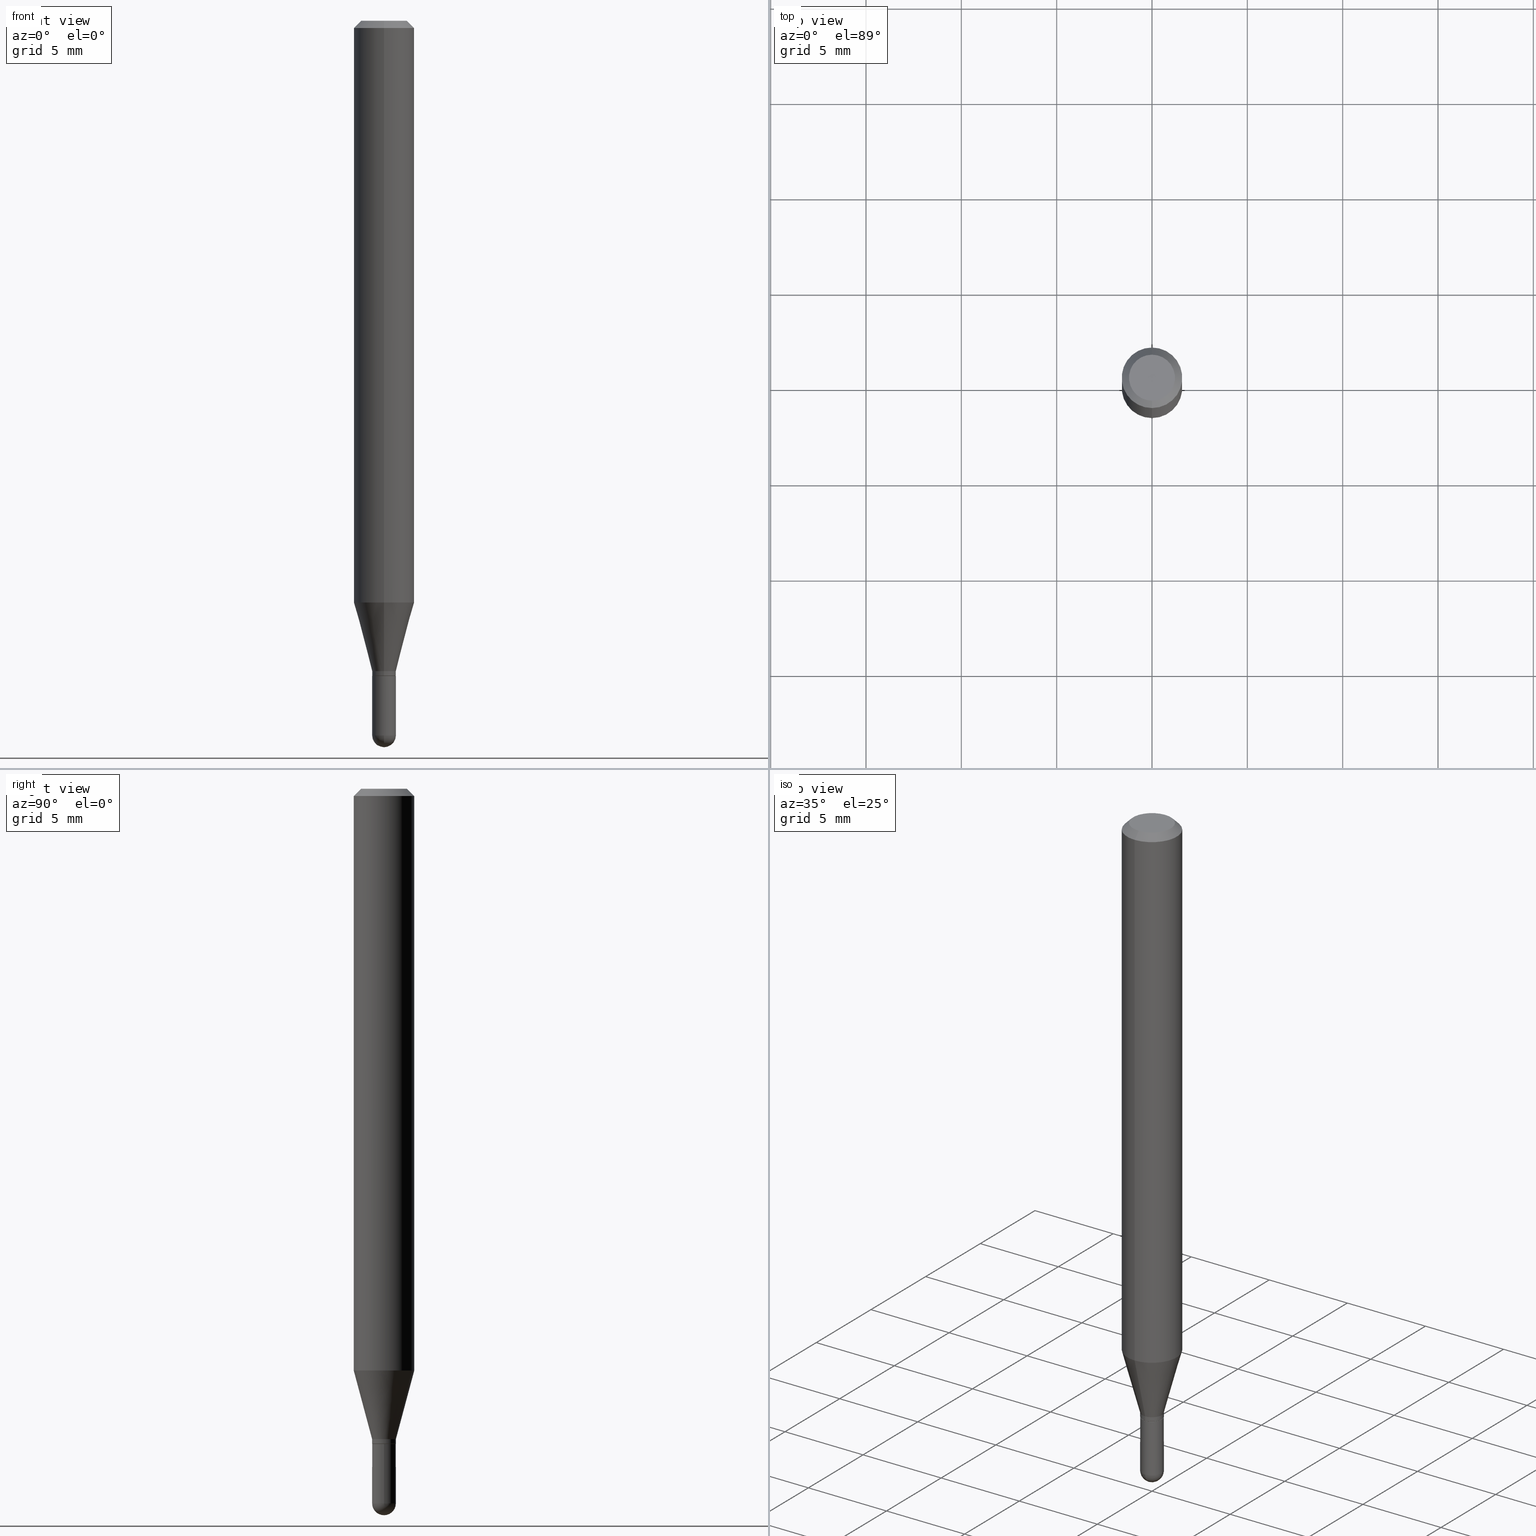
[diagram: canonical four-view strip — front | top / right | iso, engineering-drawing reading convention]
A machine part, canonical four-view strip (front | top / right | iso — engineering-drawing reading convention). The complete STEP part file that produces these views, byte-faithful:
ISO-10303-21;
HEADER;
FILE_DESCRIPTION (( 'STEP AP203' ),
    '1' );
FILE_NAME ('02580.STEP',
    '2024-03-07T20:33:36',
    ( '' ),
    ( '' ),
    'SwSTEP 2.0',
    'SolidWorks 2023',
    '' );
FILE_SCHEMA (( 'CONFIG_CONTROL_DESIGN' ));
ENDSEC;

DATA;
#1 = COORDINATED_UNIVERSAL_TIME_OFFSET ( 5, 0, .BEHIND. ) ;
#2 = ORIENTED_EDGE ( 'NONE', *, *, #184, .F. ) ;
#3 = EDGE_LOOP ( 'NONE', ( #83, #474, #207, #306, #398 ) ) ;
#4 = DIRECTION ( 'NONE',  ( 2.438088387897960049E-29, -3.491481338843145188E-15, -1.000000000000000000 ) ) ;
#5 = DIRECTION ( 'NONE',  ( 1.000000000000000000, -6.982962677686266711E-15, 4.883557194083112901E-29 ) ) ;
#6 = AXIS2_PLACEMENT_3D ( 'NONE', #185, #375, #181 ) ;
#7 = CONICAL_SURFACE ( 'NONE', #378, 0.02400000000000000050, 0.7853981633974739252 ) ;
#8 = AXIS2_PLACEMENT_3D ( 'NONE', #350, #235, #193 ) ;
#9 = DIRECTION ( 'NONE',  ( 1.000000000000000000, -6.982962677686272233E-15, 0.000000000000000000 ) ) ;
#10 = SPHERICAL_SURFACE ( 'NONE', #171, 0.02450000000000012584 ) ;
#11 = SPHERICAL_SURFACE ( 'NONE', #481, 0.02450000000000012584 ) ;
#12 = PERSON_AND_ORGANIZATION ( #260, #353 ) ;
#13 = CARTESIAN_POINT ( 'NONE',  ( 3.308719294768489645E-29, -4.723974251454776406E-15, -1.352999999999999980 ) ) ;
#14 = AXIS2_PLACEMENT_3D ( 'NONE', #475, #4, #482 ) ;
#15 = LOCAL_TIME ( 15, 33, 36.00000000000000000, #218 ) ;
#16 = FACE_OUTER_BOUND ( 'NONE', #284, .T. ) ;
#17 = CARTESIAN_POINT ( 'NONE',  ( 3.284268798558277710E-29, -4.689053435096215109E-15, -1.343000000000000416 ) ) ;
#18 = CC_DESIGN_PERSON_AND_ORGANIZATION_ASSIGNMENT ( #403, #43, ( #309 ) ) ;
#19 = PERSON_AND_ORGANIZATION_ROLE ( 'classification_officer' ) ;
#20 = DIRECTION ( 'NONE',  ( -6.982962677686266711E-15, -1.000000000000000000, 3.491476869021752779E-15 ) ) ;
#21 = DIRECTION ( 'NONE',  ( -6.982962677686265922E-15, -1.000000000000000000, 0.000000000000000000 ) ) ;
#22 = APPROVAL_STATUS ( 'not_yet_approved' ) ;
#23 = LINE ( 'NONE', #183, #57 ) ;
#24 = VERTEX_POINT ( 'NONE', #389 ) ;
#25 = ADVANCED_FACE ( 'NONE', ( #194 ), #273, .T. ) ;
#26 = AXIS2_PLACEMENT_3D ( 'NONE', #341, #294, #456 ) ;
#27 = CC_DESIGN_DATE_AND_TIME_ASSIGNMENT ( #140, #382, ( #106 ) ) ;
#28 = DIRECTION ( 'NONE',  ( -6.982962677686265922E-15, -1.000000000000000000, 3.491476869021752385E-15 ) ) ;
#29 = PRODUCT_DEFINITION_FORMATION_WITH_SPECIFIED_SOURCE ( 'ANY', '', #371, .NOT_KNOWN. ) ;
#30 = VERTEX_POINT ( 'NONE', #322 ) ;
#31 = ORIENTED_EDGE ( 'NONE', *, *, #408, .T. ) ;
#32 = AXIS2_PLACEMENT_3D ( 'NONE', #330, #252, #124 ) ;
#33 = LOCAL_TIME ( 15, 33, 36.00000000000000000, #1 ) ;
#34 = VERTEX_POINT ( 'NONE', #311 ) ;
#35 = LENGTH_MEASURE_WITH_UNIT ( LENGTH_MEASURE( 0.02539999999999999897 ), #500 );
#36 = DIRECTION ( 'NONE',  ( 2.445471927444732928E-29, -3.491476869021752385E-15, -1.000000000000000000 ) ) ;
#37 = ORIENTED_EDGE ( 'NONE', *, *, #105, .T. ) ;
#38 = EDGE_LOOP ( 'NONE', ( #230, #281, #191, #233 ) ) ;
#39 = EDGE_LOOP ( 'NONE', ( #441, #163, #503, #202 ) ) ;
#40 = ADVANCED_FACE ( 'NONE', ( #237 ), #48, .T. ) ;
#41 = VECTOR ( 'NONE', #47, 39.37007874015748854 ) ;
#42 = EDGE_LOOP ( 'NONE', ( #109, #279, #435, #241 ) ) ;
#43 = PERSON_AND_ORGANIZATION_ROLE ( 'creator' ) ;
#44 = DIRECTION ( 'NONE',  ( -2.445468806185136877E-29, 3.491481338843145188E-15, 1.000000000000000000 ) ) ;
#45 = FACE_OUTER_BOUND ( 'NONE', #405, .T. ) ;
#46 = ORIENTED_EDGE ( 'NONE', *, *, #431, .T. ) ;
#47 = DIRECTION ( 'NONE',  ( -1.807323732225332900E-15, -0.2588190451025185190, 0.9659258262890689783 ) ) ;
#48 = CONICAL_SURFACE ( 'NONE', #344, 0.06250000000000000000, 0.7853981633974483900 ) ;
#49 = DIRECTION ( 'NONE',  ( 1.000000000000000000, 0.000000000000000000, 0.000000000000000000 ) ) ;
#50 = CARTESIAN_POINT ( 'NONE',  ( 3.090860900556744730E-16, 0.02449999999999523739, -1.343000000000000416 ) ) ;
#51 = AXIS2_PLACEMENT_3D ( 'NONE', #280, #82, #368 ) ;
#52 = ADVANCED_FACE ( 'NONE', ( #243 ), #283, .T. ) ;
#53 = DIRECTION ( 'NONE',  ( -4.851104656540964275E-15, -0.7071067811865500152, -0.7071067811865450192 ) ) ;
#54 = PERSON_AND_ORGANIZATION ( #260, #353 ) ;
#55 = DIRECTION ( 'NONE',  ( -2.445471927444732928E-29, 3.491476869021752385E-15, 1.000000000000000000 ) ) ;
#56 = CARTESIAN_POINT ( 'NONE',  ( 3.308723517832723557E-29, -4.723968203786431817E-15, -1.352999999999999980 ) ) ;
#57 = VECTOR ( 'NONE', #135, 39.37007874015748143 ) ;
#58 = CIRCLE ( 'NONE', #236, 0.02449999999999992462 ) ;
#59 = DIRECTION ( 'NONE',  ( -2.445471927444732928E-29, 3.491476869021752385E-15, 1.000000000000000000 ) ) ;
#60 = ORIENTED_EDGE ( 'NONE', *, *, #195, .F. ) ;
#61 = APPROVAL_STATUS ( 'not_yet_approved' ) ;
#62 = DIRECTION ( 'NONE',  ( -2.445471927444732928E-29, 3.491476869021752385E-15, 1.000000000000000000 ) ) ;
#63 = ADVANCED_FACE ( 'NONE', ( #85 ), #508, .T. ) ;
#64 = ADVANCED_FACE ( 'NONE', ( #45 ), #160, .T. ) ;
#65 = PLANE ( 'NONE',  #68 ) ;
#66 = VECTOR ( 'NONE', #162, 39.37007874015748143 ) ;
#67 = CARTESIAN_POINT ( 'NONE',  ( 3.606194066117680480E-29, -5.154681100120972780E-15, -1.475500000000000256 ) ) ;
#68 = AXIS2_PLACEMENT_3D ( 'NONE', #351, #386, #28 ) ;
#69 = DIRECTION ( 'NONE',  ( -2.445468806185136597E-29, 3.491481338843145583E-15, 1.000000000000000000 ) ) ;
#70 = EDGE_LOOP ( 'NONE', ( #2, #249, #459, #288 ) ) ;
#71 = ORIENTED_EDGE ( 'NONE', *, *, #165, .F. ) ;
#72 = ADVANCED_FACE ( 'NONE', ( #298 ), #11, .T. ) ;
#73 = CIRCLE ( 'NONE', #151, 0.02450000000000000441 ) ;
#74 = CONICAL_SURFACE ( 'NONE', #462, 0.02449999999999992462, 0.2617993877991506291 ) ;
#75 = CC_DESIGN_APPROVAL ( #352, ( #29 ) ) ;
#76 = VERTEX_POINT ( 'NONE', #169 ) ;
#77 = CARTESIAN_POINT ( 'NONE',  ( 3.668207891167179599E-31, -5.237215303532743381E-17, -0.01500000000000032904 ) ) ;
#78 = ADVANCED_FACE ( 'NONE', ( #101 ), #270, .T. ) ;
#79 = ORIENTED_EDGE ( 'NONE', *, *, #176, .F. ) ;
#80 = CC_DESIGN_PERSON_AND_ORGANIZATION_ASSIGNMENT ( #12, #173, ( #29 ) ) ;
#81 = COORDINATED_UNIVERSAL_TIME_OFFSET ( 5, 0, .BEHIND. ) ;
#82 = DIRECTION ( 'NONE',  ( -2.445468806185136597E-29, 3.491481338843145583E-15, 1.000000000000000000 ) ) ;
#83 = ORIENTED_EDGE ( 'NONE', *, *, #436, .T. ) ;
#84 = APPROVAL_DATE_TIME ( #442, #150 ) ;
#85 = FACE_OUTER_BOUND ( 'NONE', #497, .T. ) ;
#86 = AXIS2_PLACEMENT_3D ( 'NONE', #13, #174, #224 ) ;
#87 = ORIENTED_EDGE ( 'NONE', *, *, #317, .F. ) ;
#88 = PRODUCT_DEFINITION_SHAPE ( 'NONE', 'NONE',  #309 ) ;
#89 = CIRCLE ( 'NONE', #422, 0.02450000000000000441 ) ;
#90 = DATE_TIME_ROLE ( 'creation_date' ) ;
#91 = FACE_OUTER_BOUND ( 'NONE', #125, .T. ) ;
#92 = DIRECTION ( 'NONE',  ( -2.445471927444732928E-29, 3.491476869021752385E-15, 1.000000000000000000 ) ) ;
#93 = MECHANICAL_CONTEXT ( 'NONE', #499, 'mechanical' ) ;
#94 = PERSON_AND_ORGANIZATION_ROLE ( 'design_supplier' ) ;
#95 = DIRECTION ( 'NONE',  ( -6.982962677686265922E-15, -1.000000000000000000, 0.000000000000000000 ) ) ;
#96 = AXIS2_PLACEMENT_3D ( 'NONE', #460, #488, #95 ) ;
#97 = SECURITY_CLASSIFICATION_LEVEL ( 'unclassified' ) ;
#98 = CARTESIAN_POINT ( 'NONE',  ( -4.364351673553916201E-16, -0.06250000000000000000, 2.182173043138594994E-16 ) ) ;
#99 = ADVANCED_FACE ( 'NONE', ( #325 ), #7, .T. ) ;
#100 = LINE ( 'NONE', #219, #412 ) ;
#101 = FACE_OUTER_BOUND ( 'NONE', #70, .T. ) ;
#102 = DIRECTION ( 'NONE',  ( -2.445471927444732928E-29, 3.491476869021752385E-15, 1.000000000000000000 ) ) ;
#103 = PERSON_AND_ORGANIZATION ( #260, #353 ) ;
#104 = CONICAL_SURFACE ( 'NONE', #461, 0.02449999999999992462, 0.2617993877991506291 ) ;
#105 = EDGE_CURVE ( 'NONE', #506, #122, #430, .T. ) ;
#106 = SECURITY_CLASSIFICATION ( '', '', #97 ) ;
#107 = DIRECTION ( 'NONE',  ( 1.000000000000000000, -6.982962677686272233E-15, 0.000000000000000000 ) ) ;
#108 = ORIENTED_EDGE ( 'NONE', *, *, #359, .F. ) ;
#109 = ORIENTED_EDGE ( 'NONE', *, *, #167, .F. ) ;
#110 = CIRCLE ( 'NONE', #509, 0.06250000000000000000 ) ;
#111 = APPLICATION_PROTOCOL_DEFINITION ( 'international standard', 'config_control_design', 1994, #499 ) ;
#112 = VERTEX_POINT ( 'NONE', #175 ) ;
#113 = VERTEX_POINT ( 'NONE', #287 ) ;
#114 = VERTEX_POINT ( 'NONE', #329 ) ;
#115 = VECTOR ( 'NONE', #44, 39.37007874015748143 ) ;
#116 = DIRECTION ( 'NONE',  ( -2.445471927444732928E-29, 3.491476869021752385E-15, 1.000000000000000000 ) ) ;
#117 = APPROVAL_PERSON_ORGANIZATION ( #212, #150, #172 ) ;
#118 = CC_DESIGN_DATE_AND_TIME_ASSIGNMENT ( #126, #90, ( #309 ) ) ;
#119 = EDGE_LOOP ( 'NONE', ( #469, #161, #244, #437 ) ) ;
#120 = CARTESIAN_POINT ( 'NONE',  ( 0.000000000000000000, 0.000000000000000000, 0.000000000000000000 ) ) ;
#121 = DIRECTION ( 'NONE',  ( -6.982962677686265133E-15, -1.000000000000000000, 0.000000000000000000 ) ) ;
#122 = VERTEX_POINT ( 'NONE', #50 ) ;
#123 = AXIS2_PLACEMENT_3D ( 'NONE', #197, #444, #356 ) ;
#124 = DIRECTION ( 'NONE',  ( -6.982962677686265922E-15, -1.000000000000000000, 3.483106191921935554E-15 ) ) ;
#125 = EDGE_LOOP ( 'NONE', ( #464, #323 ) ) ;
#126 = DATE_AND_TIME ( #478, #33 ) ;
#127 = LINE ( 'NONE', #201, #66 ) ;
#128 = DIRECTION ( 'NONE',  ( -2.445471927444732928E-29, 3.491476869021752385E-15, 1.000000000000000000 ) ) ;
#129 = VECTOR ( 'NONE', #53, 39.37007874015748143 ) ;
#130 = ORIENTED_EDGE ( 'NONE', *, *, #157, .F. ) ;
#131 = CC_DESIGN_PERSON_AND_ORGANIZATION_ASSIGNMENT ( #454, #94, ( #29 ) ) ;
#132 = CARTESIAN_POINT ( 'NONE',  ( 3.668207891167179599E-31, -5.237215303532743381E-17, -0.01500000000000032904 ) ) ;
#133 = DIRECTION ( 'NONE',  ( -2.445471927444732928E-29, 3.491476869021752385E-15, 1.000000000000000000 ) ) ;
#134 = APPLICATION_CONTEXT ( 'configuration controlled 3d designs of mechanical parts and assemblies' ) ;
#135 = DIRECTION ( 'NONE',  ( 4.937700262164548042E-15, 0.7071067811865451302, -0.7071067811865499042 ) ) ;
#136 = CIRCLE ( 'NONE', #448, 0.02400000000000000050 ) ;
#137 = APPROVAL ( #22, 'UNSPECIFIED' ) ;
#138 = DATE_AND_TIME ( #490, #15 ) ;
#139 = CARTESIAN_POINT ( 'NONE',  ( 1.740829702612568216E-16, 0.02449999999999523392, -1.343000000000000416 ) ) ;
#140 = DATE_AND_TIME ( #414, #373 ) ;
#141 = LINE ( 'NONE', #139, #401 ) ;
#142 = CARTESIAN_POINT ( 'NONE',  ( -4.287811248607203282E-16, -0.06250000000000005551, -0.01500000000000011047 ) ) ;
#143 = DIRECTION ( 'NONE',  ( -1.000000000000000000, 6.982962677686265922E-15, -4.883557194083112340E-29 ) ) ;
#144 = CIRCLE ( 'NONE', #487, 0.06250000000000000000 ) ;
#145 = CC_DESIGN_APPROVAL ( #137, ( #106 ) ) ;
#146 = EDGE_CURVE ( 'NONE', #166, #122, #335, .T. ) ;
#147 = EDGE_LOOP ( 'NONE', ( #354, #108, #304, #480 ) ) ;
#148 = CARTESIAN_POINT ( 'NONE',  ( -1.710825856032801340E-16, -0.02450000000000461531, -1.343000000000000416 ) ) ;
#149 = FACE_OUTER_BOUND ( 'NONE', #320, .T. ) ;
#150 = APPROVAL ( #358, 'UNSPECIFIED' ) ;
#151 = AXIS2_PLACEMENT_3D ( 'NONE', #178, #339, #424 ) ;
#152 = FACE_OUTER_BOUND ( 'NONE', #42, .T. ) ;
#153 = ORIENTED_EDGE ( 'NONE', *, *, #395, .T. ) ;
#154 = DIRECTION ( 'NONE',  ( 6.982962677686265922E-15, 1.000000000000000000, -3.483106191921935554E-15 ) ) ;
#155 = VERTEX_POINT ( 'NONE', #291 ) ;
#156 = EDGE_CURVE ( 'NONE', #205, #314, #144, .T. ) ;
#157 = EDGE_CURVE ( 'NONE', #472, #76, #136, .T. ) ;
#158 = EDGE_LOOP ( 'NONE', ( #153, #365, #367, #71 ) ) ;
#159 = DIRECTION ( 'NONE',  ( 6.982962677686265922E-15, 1.000000000000000000, -3.491476869021752385E-15 ) ) ;
#160 = CYLINDRICAL_SURFACE ( 'NONE', #349, 0.06250000000000000000 ) ;
#161 = ORIENTED_EDGE ( 'NONE', *, *, #195, .T. ) ;
#162 = DIRECTION ( 'NONE',  ( -2.445468806185136877E-29, 3.491481338843145188E-15, 1.000000000000000000 ) ) ;
#163 = ORIENTED_EDGE ( 'NONE', *, *, #415, .T. ) ;
#164 = ORIENTED_EDGE ( 'NONE', *, *, #395, .F. ) ;
#165 = EDGE_CURVE ( 'NONE', #76, #446, #347, .T. ) ;
#166 = VERTEX_POINT ( 'NONE', #465 ) ;
#167 = EDGE_CURVE ( 'NONE', #314, #238, #269, .T. ) ;
#168 = CYLINDRICAL_SURFACE ( 'NONE', #51, 0.02450000000000000441 ) ;
#169 = CARTESIAN_POINT ( 'NONE',  ( -1.675911042644372995E-16, -0.02400000000000472589, -1.352999999999999980 ) ) ;
#170 = AXIS2_PLACEMENT_3D ( 'NONE', #247, #397, #404 ) ;
#171 = AXIS2_PLACEMENT_3D ( 'NONE', #259, #334, #416 ) ;
#172 = APPROVAL_ROLE ( '' ) ;
#173 = PERSON_AND_ORGANIZATION_ROLE ( 'creator' ) ;
#174 = DIRECTION ( 'NONE',  ( -2.445468806185136597E-29, 3.491481338843145583E-15, 1.000000000000000000 ) ) ;
#175 = CARTESIAN_POINT ( 'NONE',  ( 3.665060473164972086E-29, -5.241722585251585722E-15, -1.500000000000000444 ) ) ;
#176 = EDGE_CURVE ( 'NONE', #112, #512, #391, .T. ) ;
#177 = AXIS2_PLACEMENT_3D ( 'NONE', #77, #240, #154 ) ;
#178 = CARTESIAN_POINT ( 'NONE',  ( 3.608289223526169394E-29, -5.151680715463062135E-15, -1.475500000000000256 ) ) ;
#179 = CARTESIAN_POINT ( 'NONE',  ( 3.284268798558277710E-29, -4.689053435096215109E-15, -1.343000000000000416 ) ) ;
#180 = AXIS2_PLACEMENT_3D ( 'NONE', #56, #417, #452 ) ;
#181 = DIRECTION ( 'NONE',  ( -6.982962677686266711E-15, -1.000000000000000000, 3.491476869021752779E-15 ) ) ;
#182 = DIRECTION ( 'NONE',  ( -2.445471927444732928E-29, 3.491476869021752385E-15, 1.000000000000000000 ) ) ;
#183 = CARTESIAN_POINT ( 'NONE',  ( 4.364351673553919652E-16, 0.06249999999999995143, -0.01500000000000054588 ) ) ;
#184 = EDGE_CURVE ( 'NONE', #472, #166, #227, .T. ) ;
#185 = CARTESIAN_POINT ( 'NONE',  ( 8.024746679208411750E-45, -1.145718218875301150E-30, -3.281471600286758690E-16 ) ) ;
#186 = AXIS2_PLACEMENT_3D ( 'NONE', #67, #143, #501 ) ;
#187 = APPROVAL_PERSON_ORGANIZATION ( #103, #352, #293 ) ;
#188 = DIRECTION ( 'NONE',  ( -2.445471927444732928E-29, 3.491476869021752385E-15, 1.000000000000000000 ) ) ;
#189 = EDGE_CURVE ( 'NONE', #34, #512, #362, .T. ) ;
#190 = CARTESIAN_POINT ( 'NONE',  ( 4.440892098500625669E-16, 0.06250000000000000000, -2.182173043138594994E-16 ) ) ;
#191 = ORIENTED_EDGE ( 'NONE', *, *, #105, .F. ) ;
#192 = VECTOR ( 'NONE', #271, 39.37007874015748143 ) ;
#193 = DIRECTION ( 'NONE',  ( -6.982962677686265922E-15, -1.000000000000000000, 3.491476869021751991E-15 ) ) ;
#194 = FACE_OUTER_BOUND ( 'NONE', #147, .T. ) ;
#195 = EDGE_CURVE ( 'NONE', #122, #506, #203, .T. ) ;
#196 = ORIENTED_EDGE ( 'NONE', *, *, #221, .T. ) ;
#197 = CARTESIAN_POINT ( 'NONE',  ( 0.000000000000000000, 0.000000000000000000, 0.000000000000000000 ) ) ;
#198 = ORIENTED_EDGE ( 'NONE', *, *, #345, .T. ) ;
#199 = EDGE_CURVE ( 'NONE', #24, #238, #307, .T. ) ;
#200 = PERSON_AND_ORGANIZATION ( #260, #353 ) ;
#201 = CARTESIAN_POINT ( 'NONE',  ( -0.02450000000000000441, 1.740829702612245769E-16, -1.205139097112452116E-30 ) ) ;
#202 = ORIENTED_EDGE ( 'NONE', *, *, #385, .F. ) ;
#203 = CIRCLE ( 'NONE', #220, 0.02449999999999992462 ) ;
#204 = DIRECTION ( 'NONE',  ( 1.000000000000000000, -6.982962677686267499E-15, 4.876176775795936353E-29 ) ) ;
#205 = VERTEX_POINT ( 'NONE', #324 ) ;
#206 = CARTESIAN_POINT ( 'NONE',  ( 4.440892098500920998E-16, 0.06249999999999995143, -0.01500000000000054588 ) ) ;
#207 = ORIENTED_EDGE ( 'NONE', *, *, #338, .F. ) ;
#208 = EDGE_CURVE ( 'NONE', #34, #114, #127, .T. ) ;
#209 = EDGE_LOOP ( 'NONE', ( #384, #232 ) ) ;
#210 = DIRECTION ( 'NONE',  ( -2.445468806185136597E-29, 3.491481338843145583E-15, 1.000000000000000000 ) ) ;
#211 = CLOSED_SHELL ( 'NONE', ( #261, #447, #292, #72, #275 ) ) ;
#212 = PERSON_AND_ORGANIZATION ( #260, #353 ) ;
#213 = CIRCLE ( 'NONE', #328, 0.02450000000000000441 ) ;
#214 = APPROVAL_DATE_TIME ( #299, #137 ) ;
#215 = EDGE_CURVE ( 'NONE', #113, #155, #213, .T. ) ;
#216 = SHAPE_DEFINITION_REPRESENTATION ( #88, #343 ) ;
#217 = DIRECTION ( 'NONE',  ( -6.982962677686265133E-15, -1.000000000000000000, 0.000000000000000000 ) ) ;
#218 = COORDINATED_UNIVERSAL_TIME_OFFSET ( 5, 0, .BEHIND. ) ;
#219 = CARTESIAN_POINT ( 'NONE',  ( -1.710825856033129704E-16, -0.02449999999999992462, 8.554118329103266611E-17 ) ) ;
#220 = AXIS2_PLACEMENT_3D ( 'NONE', #17, #182, #507 ) ;
#221 = EDGE_CURVE ( 'NONE', #113, #355, #277, .T. ) ;
#222 = CARTESIAN_POINT ( 'NONE',  ( 3.307500781869001853E-29, -4.722222465351921100E-15, -1.352500000000000036 ) ) ;
#223 = APPROVAL_DATE_TIME ( #138, #352 ) ;
#224 = DIRECTION ( 'NONE',  ( 1.000000000000000000, -6.982962677686273810E-15, 0.000000000000000000 ) ) ;
#225 = AXIS2_PLACEMENT_3D ( 'NONE', #364, #210, #204 ) ;
#226 = CC_DESIGN_PERSON_AND_ORGANIZATION_ASSIGNMENT ( #340, #19, ( #106 ) ) ;
#227 = LINE ( 'NONE', #496, #455 ) ;
#228 =( NAMED_UNIT ( * ) SI_UNIT ( $, .STERADIAN. ) SOLID_ANGLE_UNIT ( ) );
#229 = DIRECTION ( 'NONE',  ( 1.000000000000000000, -6.982962677686272233E-15, 0.000000000000000000 ) ) ;
#230 = ORIENTED_EDGE ( 'NONE', *, *, #492, .T. ) ;
#231 = DIRECTION ( 'NONE',  ( -6.982962677686265133E-15, -1.000000000000000000, 0.000000000000000000 ) ) ;
#232 = ORIENTED_EDGE ( 'NONE', *, *, #308, .T. ) ;
#233 = ORIENTED_EDGE ( 'NONE', *, *, #470, .F. ) ;
#234 = VECTOR ( 'NONE', #342, 39.37007874015748143 ) ;
#235 = DIRECTION ( 'NONE',  ( -2.445471927444732928E-29, 3.491476869021752385E-15, 1.000000000000000000 ) ) ;
#236 = AXIS2_PLACEMENT_3D ( 'NONE', #272, #432, #231 ) ;
#237 = FACE_OUTER_BOUND ( 'NONE', #39, .T. ) ;
#238 = VERTEX_POINT ( 'NONE', #206 ) ;
#239 = PLANE ( 'NONE',  #285 ) ;
#240 = DIRECTION ( 'NONE',  ( 2.445471927444732928E-29, -3.491476869021752385E-15, -1.000000000000000000 ) ) ;
#241 = ORIENTED_EDGE ( 'NONE', *, *, #425, .F. ) ;
#242 = CARTESIAN_POINT ( 'NONE',  ( -1.710825856032801340E-16, -0.02450000000000461531, -1.343000000000000416 ) ) ;
#243 = FACE_OUTER_BOUND ( 'NONE', #38, .T. ) ;
#244 = ORIENTED_EDGE ( 'NONE', *, *, #267, .T. ) ;
#245 = CIRCLE ( 'NONE', #86, 0.02450000000000000094 ) ;
#246 = CYLINDRICAL_SURFACE ( 'NONE', #225, 0.02450000000000000441 ) ;
#247 = CARTESIAN_POINT ( 'NONE',  ( 0.000000000000000000, 0.000000000000000000, 0.000000000000000000 ) ) ;
#248 = LOCAL_TIME ( 15, 33, 36.00000000000000000, #81 ) ;
#249 = ORIENTED_EDGE ( 'NONE', *, *, #157, .T. ) ;
#250 = DESIGN_CONTEXT ( 'detailed design', #134, 'design' ) ;
#251 = ADVANCED_FACE ( 'NONE', ( #91 ), #239, .F. ) ;
#252 = DIRECTION ( 'NONE',  ( -2.445471927444732928E-29, 3.491476869021752385E-15, 1.000000000000000000 ) ) ;
#253 = ADVANCED_FACE ( 'NONE', ( #318 ), #104, .T. ) ;
#254 = DIRECTION ( 'NONE',  ( 1.000000000000000000, -6.982962677686273810E-15, 0.000000000000000000 ) ) ;
#255 = CIRCLE ( 'NONE', #26, 0.02450000000000012584 ) ;
#256 = CC_DESIGN_APPROVAL ( #150, ( #309 ) ) ;
#257 = DIRECTION ( 'NONE',  ( -6.982962677686265922E-15, -1.000000000000000000, 3.483106191921935554E-15 ) ) ;
#258 = MANIFOLD_SOLID_BREP ( 'Body-Move/Copy2[1]', #211 ) ;
#259 = CARTESIAN_POINT ( 'NONE',  ( 3.606194066117680480E-29, -5.154681100120972780E-15, -1.475500000000000256 ) ) ;
#260 = PERSON ( 'UNSPECIFIED', 'UNSPECIFIED', 'UNSPECIFIED', ('UNSPECIFIED'), ('UNSPECIFIED'), ('UNSPECIFIED') ) ;
#261 = ADVANCED_FACE ( 'NONE', ( #443 ), #168, .T. ) ;
#262 = ORIENTED_EDGE ( 'NONE', *, *, #215, .F. ) ;
#263 = MANIFOLD_SOLID_BREP ( 'Body-Move/Copy2[2]', #445 ) ;
#264 = AXIS2_PLACEMENT_3D ( 'NONE', #179, #128, #332 ) ;
#265 = CARTESIAN_POINT ( 'NONE',  ( -1.710825856032804792E-16, -0.02450000000000472980, -1.352500000000000036 ) ) ;
#266 = ORIENTED_EDGE ( 'NONE', *, *, #156, .F. ) ;
#267 = EDGE_CURVE ( 'NONE', #506, #205, #366, .T. ) ;
#268 =( CONVERSION_BASED_UNIT ( 'INCH', #35 ) LENGTH_UNIT ( ) NAMED_UNIT ( #426 ) );
#269 = LINE ( 'NONE', #190, #234 ) ;
#270 = CONICAL_SURFACE ( 'NONE', #180, 0.02400000000000000050, 0.7853981633974739252 ) ;
#271 = DIRECTION ( 'NONE',  ( -4.937700262164674260E-15, -0.7071067811865632269, 0.7071067811865319186 ) ) ;
#272 = CARTESIAN_POINT ( 'NONE',  ( 3.307500781869001853E-29, -4.722222465351921100E-15, -1.352500000000000036 ) ) ;
#273 = CONICAL_SURFACE ( 'NONE', #177, 0.06250000000000000000, 0.7853981633974483900 ) ;
#274 = EDGE_LOOP ( 'NONE', ( #87, #326, #357, #477 ) ) ;
#275 = ADVANCED_FACE ( 'NONE', ( #399 ), #246, .T. ) ;
#276 = ORIENTED_EDGE ( 'NONE', *, *, #406, .F. ) ;
#277 = LINE ( 'NONE', #286, #115 ) ;
#278 = DIRECTION ( 'NONE',  ( -6.982962677686265922E-15, -1.000000000000000000, 3.491476869021751991E-15 ) ) ;
#279 = ORIENTED_EDGE ( 'NONE', *, *, #319, .T. ) ;
#280 = CARTESIAN_POINT ( 'NONE',  ( 0.000000000000000000, 0.000000000000000000, 0.000000000000000000 ) ) ;
#281 = ORIENTED_EDGE ( 'NONE', *, *, #146, .T. ) ;
#282 = CALENDAR_DATE ( 2024, 7, 3 ) ;
#283 = CYLINDRICAL_SURFACE ( 'NONE', #123, 0.02449999999999992462 ) ;
#284 = EDGE_LOOP ( 'NONE', ( #37, #198, #266, #312 ) ) ;
#285 = AXIS2_PLACEMENT_3D ( 'NONE', #396, #360, #159 ) ;
#286 = CARTESIAN_POINT ( 'NONE',  ( 0.02450000000000000441, -1.710825856033135867E-16, 1.194663310070004571E-30 ) ) ;
#287 = CARTESIAN_POINT ( 'NONE',  ( 0.02450000000000000441, -5.108910069062233326E-15, -1.475500000000000256 ) ) ;
#288 = ORIENTED_EDGE ( 'NONE', *, *, #431, .F. ) ;
#289 = DIRECTION ( 'NONE',  ( -2.445471927444732928E-29, 3.491476869021752385E-15, 1.000000000000000000 ) ) ;
#290 = LINE ( 'NONE', #142, #129 ) ;
#291 = CARTESIAN_POINT ( 'NONE',  ( 1.740829702612610371E-16, 0.02449999999999490780, -1.475500000000000256 ) ) ;
#292 = ADVANCED_FACE ( 'NONE', ( #511 ), #321, .F. ) ;
#293 = APPROVAL_ROLE ( '' ) ;
#294 = DIRECTION ( 'NONE',  ( 1.000000000000000000, -7.105427357601001070E-15, 4.926315508542082329E-29 ) ) ;
#295 = CIRCLE ( 'NONE', #315, 0.04749999999999999362 ) ;
#296 = APPROVAL_ROLE ( '' ) ;
#297 = LINE ( 'NONE', #98, #302 ) ;
#298 = FACE_OUTER_BOUND ( 'NONE', #274, .T. ) ;
#299 = DATE_AND_TIME ( #380, #379 ) ;
#300 = DIRECTION ( 'NONE',  ( -2.445468806185136597E-29, 3.491481338843145583E-15, 1.000000000000000000 ) ) ;
#301 = DIRECTION ( 'NONE',  ( -2.445468806185136597E-29, 3.491481338843145583E-15, 1.000000000000000000 ) ) ;
#302 = VECTOR ( 'NONE', #458, 39.37007874015748143 ) ;
#303 = CIRCLE ( 'NONE', #96, 0.02400000000000000050 ) ;
#304 = ORIENTED_EDGE ( 'NONE', *, *, #385, .T. ) ;
#305 = EDGE_CURVE ( 'NONE', #30, #361, #494, .T. ) ;
#306 = ORIENTED_EDGE ( 'NONE', *, *, #221, .F. ) ;
#307 = CIRCLE ( 'NONE', #32, 0.06250000000000000000 ) ;
#308 = EDGE_CURVE ( 'NONE', #114, #355, #336, .T. ) ;
#309 = PRODUCT_DEFINITION ( 'UNKNOWN', '', #29, #250 ) ;
#310 = CARTESIAN_POINT ( 'NONE',  ( -1.710825856032779154E-16, -0.02450000000000522246, -1.475500000000000256 ) ) ;
#311 = CARTESIAN_POINT ( 'NONE',  ( -0.02450000000000000441, -4.763744513197695359E-15, -1.475500000000000256 ) ) ;
#312 = ORIENTED_EDGE ( 'NONE', *, *, #267, .F. ) ;
#313 = CARTESIAN_POINT ( 'NONE',  ( 0.000000000000000000, 0.000000000000000000, 0.000000000000000000 ) ) ;
#314 = VERTEX_POINT ( 'NONE', #413 ) ;
#315 = AXIS2_PLACEMENT_3D ( 'NONE', #381, #62, #20 ) ;
#316 = CC_DESIGN_SECURITY_CLASSIFICATION ( #106, ( #29 ) ) ;
#317 = EDGE_CURVE ( 'NONE', #112, #155, #255, .T. ) ;
#318 = FACE_OUTER_BOUND ( 'NONE', #119, .T. ) ;
#319 = EDGE_CURVE ( 'NONE', #314, #205, #110, .T. ) ;
#320 = EDGE_LOOP ( 'NONE', ( #164, #130 ) ) ;
#321 = PLANE ( 'NONE',  #14 ) ;
#322 = CARTESIAN_POINT ( 'NONE',  ( -3.773273898774340269E-16, -0.04749999999999999362, -1.623020087501426140E-16 ) ) ;
#323 = ORIENTED_EDGE ( 'NONE', *, *, #305, .T. ) ;
#324 = CARTESIAN_POINT ( 'NONE',  ( -4.364351673553624323E-16, -0.06250000000000420497, -1.201182069312383138 ) ) ;
#325 = FACE_OUTER_BOUND ( 'NONE', #158, .T. ) ;
#326 = ORIENTED_EDGE ( 'NONE', *, *, #176, .T. ) ;
#327 = UNCERTAINTY_MEASURE_WITH_UNIT (LENGTH_MEASURE( 1.000000000000000082E-05 ), #268, 'distance_accuracy_value', 'NONE');
#328 = AXIS2_PLACEMENT_3D ( 'NONE', #370, #449, #9 ) ;
#329 = CARTESIAN_POINT ( 'NONE',  ( -0.02450000000000000094, -4.763744513197695359E-15, -1.352999999999999980 ) ) ;
#330 = CARTESIAN_POINT ( 'NONE',  ( 3.668207891167179599E-31, -5.237215303532743381E-17, -0.01500000000000032904 ) ) ;
#331 = CARTESIAN_POINT ( 'NONE',  ( 3.308719294768489645E-29, -4.723974251454776406E-15, -1.352999999999999980 ) ) ;
#332 = DIRECTION ( 'NONE',  ( -6.982962677686265133E-15, -1.000000000000000000, 0.000000000000000000 ) ) ;
#333 = COORDINATED_UNIVERSAL_TIME_OFFSET ( 5, 0, .BEHIND. ) ;
#334 = DIRECTION ( 'NONE',  ( 1.000000000000000000, -6.982962677686266711E-15, 4.883557194083112901E-29 ) ) ;
#335 = LINE ( 'NONE', #484, #466 ) ;
#336 = CIRCLE ( 'NONE', #411, 0.02450000000000000094 ) ;
#337 = AXIS2_PLACEMENT_3D ( 'NONE', #222, #59, #418 ) ;
#338 = EDGE_CURVE ( 'NONE', #355, #114, #245, .T. ) ;
#339 = DIRECTION ( 'NONE',  ( -2.445468806185136597E-29, 3.491481338843145583E-15, 1.000000000000000000 ) ) ;
#340 = PERSON_AND_ORGANIZATION ( #260, #353 ) ;
#341 = CARTESIAN_POINT ( 'NONE',  ( 3.606194066117680480E-29, -5.154681100120972780E-15, -1.475500000000000256 ) ) ;
#342 = DIRECTION ( 'NONE',  ( -2.445471927444732928E-29, 3.491476869021752385E-15, 1.000000000000000000 ) ) ;
#343 = ADVANCED_BREP_SHAPE_REPRESENTATION ( '02580', ( #258, #263, #473 ), #467 ) ;
#344 = AXIS2_PLACEMENT_3D ( 'NONE', #393, #36, #476 ) ;
#345 = EDGE_CURVE ( 'NONE', #122, #314, #141, .T. ) ;
#346 = CARTESIAN_POINT ( 'NONE',  ( 2.937457030253406908E-29, -4.193899410487870118E-15, -1.201182069312383360 ) ) ;
#347 = LINE ( 'NONE', #428, #192 ) ;
#348 = EDGE_LOOP ( 'NONE', ( #505, #394, #31, #196, #439 ) ) ;
#349 = AXIS2_PLACEMENT_3D ( 'NONE', #313, #116, #278 ) ;
#350 = CARTESIAN_POINT ( 'NONE',  ( 0.000000000000000000, 0.000000000000000000, 0.000000000000000000 ) ) ;
#351 = CARTESIAN_POINT ( 'NONE',  ( 3.308723517832723557E-29, -4.723968203786431817E-15, -1.352999999999999980 ) ) ;
#352 = APPROVAL ( #61, 'UNSPECIFIED' ) ;
#353 = ORGANIZATION ( 'UNSPECIFIED', 'UNSPECIFIED', '' ) ;
#354 = ORIENTED_EDGE ( 'NONE', *, *, #415, .F. ) ;
#355 = VERTEX_POINT ( 'NONE', #486 ) ;
#356 = DIRECTION ( 'NONE',  ( -6.982962677686265133E-15, -1.000000000000000000, 3.491476869021752385E-15 ) ) ;
#357 = ORIENTED_EDGE ( 'NONE', *, *, #189, .F. ) ;
#358 = APPROVAL_STATUS ( 'not_yet_approved' ) ;
#359 = EDGE_CURVE ( 'NONE', #361, #30, #295, .T. ) ;
#360 = DIRECTION ( 'NONE',  ( 2.445471927444732648E-29, -3.491476869021752385E-15, -1.000000000000000000 ) ) ;
#361 = VERTEX_POINT ( 'NONE', #383 ) ;
#362 = CIRCLE ( 'NONE', #471, 0.02450000000000000441 ) ;
#363 = DIRECTION ( 'NONE',  ( 0.000000000000000000, 0.000000000000000000, 1.000000000000000000 ) ) ;
#364 = CARTESIAN_POINT ( 'NONE',  ( 0.000000000000000000, 0.000000000000000000, 0.000000000000000000 ) ) ;
#365 = ORIENTED_EDGE ( 'NONE', *, *, #184, .T. ) ;
#366 = LINE ( 'NONE', #242, #41 ) ;
#367 = ORIENTED_EDGE ( 'NONE', *, *, #492, .F. ) ;
#368 = DIRECTION ( 'NONE',  ( 1.000000000000000000, -6.982962677686267499E-15, 4.876176775795936353E-29 ) ) ;
#369 = CIRCLE ( 'NONE', #387, 0.06250000000000000000 ) ;
#370 = CARTESIAN_POINT ( 'NONE',  ( 3.608289223526169394E-29, -5.151680715463062135E-15, -1.475500000000000256 ) ) ;
#371 = PRODUCT ( '02580', '02580', '', ( #93 ) ) ;
#372 = CARTESIAN_POINT ( 'NONE',  ( 3.606194066117680480E-29, -5.154681100120972780E-15, -1.475500000000000256 ) ) ;
#373 = LOCAL_TIME ( 15, 33, 36.00000000000000000, #333 ) ;
#374 = CARTESIAN_POINT ( 'NONE',  ( 3.284268798558277710E-29, -4.689053435096215109E-15, -1.343000000000000416 ) ) ;
#375 = DIRECTION ( 'NONE',  ( -2.445471927444732928E-29, 3.491476869021752385E-15, 1.000000000000000000 ) ) ;
#376 = CARTESIAN_POINT ( 'NONE',  ( 3.308723517832723557E-29, -4.723968203786431817E-15, -1.352999999999999980 ) ) ;
#377 = DIRECTION ( 'NONE',  ( 1.839019923739602682E-15, 0.2588190451025252914, 0.9659258262890670910 ) ) ;
#378 = AXIS2_PLACEMENT_3D ( 'NONE', #376, #289, #479 ) ;
#379 = LOCAL_TIME ( 15, 33, 36.00000000000000000, #410 ) ;
#380 = CALENDAR_DATE ( 2024, 7, 3 ) ;
#381 = CARTESIAN_POINT ( 'NONE',  ( 8.024746679208411750E-45, -1.145718218875301150E-30, -3.281471600286758690E-16 ) ) ;
#382 = DATE_TIME_ROLE ( 'classification_date' ) ;
#383 = CARTESIAN_POINT ( 'NONE',  ( 3.840629472727447874E-16, 0.04749999999999999362, -4.939923113072090255E-16 ) ) ;
#384 = ORIENTED_EDGE ( 'NONE', *, *, #338, .T. ) ;
#385 = EDGE_CURVE ( 'NONE', #361, #238, #23, .T. ) ;
#386 = DIRECTION ( 'NONE',  ( -2.445471927444732648E-29, 3.491476869021752385E-15, 1.000000000000000000 ) ) ;
#387 = AXIS2_PLACEMENT_3D ( 'NONE', #132, #102, #257 ) ;
#388 = CARTESIAN_POINT ( 'NONE',  ( 3.608289223526169394E-29, -5.151680715463062135E-15, -1.475500000000000256 ) ) ;
#389 = CARTESIAN_POINT ( 'NONE',  ( -4.364351673553912750E-16, -0.06250000000000005551, -0.01500000000000011047 ) ) ;
#390 = ORIENTED_EDGE ( 'NONE', *, *, #470, .T. ) ;
#391 = CIRCLE ( 'NONE', #186, 0.02450000000000012584 ) ;
#392 = APPROVAL_PERSON_ORGANIZATION ( #54, #137, #296 ) ;
#393 = CARTESIAN_POINT ( 'NONE',  ( 3.668207891167179599E-31, -5.237215303532743381E-17, -0.01500000000000032904 ) ) ;
#394 = ORIENTED_EDGE ( 'NONE', *, *, #189, .T. ) ;
#395 = EDGE_CURVE ( 'NONE', #76, #472, #303, .T. ) ;
#396 = CARTESIAN_POINT ( 'NONE',  ( 3.316907271900976096E-16, 0.04749999999999999362, -3.299187312928711649E-16 ) ) ;
#397 = DIRECTION ( 'NONE',  ( -2.445471927444732928E-29, 3.491476869021752385E-15, 1.000000000000000000 ) ) ;
#398 = ORIENTED_EDGE ( 'NONE', *, *, #215, .T. ) ;
#399 = FACE_OUTER_BOUND ( 'NONE', #348, .T. ) ;
#400 = ORIENTED_EDGE ( 'NONE', *, *, #146, .F. ) ;
#401 = VECTOR ( 'NONE', #377, 39.37007874015748143 ) ;
#402 = CIRCLE ( 'NONE', #337, 0.02449999999999992462 ) ;
#403 = PERSON_AND_ORGANIZATION ( #260, #353 ) ;
#404 = DIRECTION ( 'NONE',  ( -6.982962677686265133E-15, -1.000000000000000000, 3.491476869021752385E-15 ) ) ;
#405 = EDGE_LOOP ( 'NONE', ( #434, #423, #438, #276 ) ) ;
#406 = EDGE_CURVE ( 'NONE', #205, #24, #297, .T. ) ;
#407 = DIRECTION ( 'NONE',  ( -2.445471927444732928E-29, 3.491476869021752385E-15, 1.000000000000000000 ) ) ;
#408 = EDGE_CURVE ( 'NONE', #512, #113, #73, .T. ) ;
#409 = PERSON_AND_ORGANIZATION_ROLE ( 'design_owner' ) ;
#410 = COORDINATED_UNIVERSAL_TIME_OFFSET ( 5, 0, .BEHIND. ) ;
#411 = AXIS2_PLACEMENT_3D ( 'NONE', #331, #300, #254 ) ;
#412 = VECTOR ( 'NONE', #188, 39.37007874015748143 ) ;
#413 = CARTESIAN_POINT ( 'NONE',  ( 4.440892098500917054E-16, 0.06249999999999578809, -1.201182069312383804 ) ) ;
#414 = CALENDAR_DATE ( 2024, 7, 3 ) ;
#415 = EDGE_CURVE ( 'NONE', #30, #24, #290, .T. ) ;
#416 = DIRECTION ( 'NONE',  ( -6.982962677686266711E-15, -1.000000000000000000, 0.000000000000000000 ) ) ;
#417 = DIRECTION ( 'NONE',  ( -2.445471927444732928E-29, 3.491476869021752385E-15, 1.000000000000000000 ) ) ;
#418 = DIRECTION ( 'NONE',  ( -6.982962677686265133E-15, -1.000000000000000000, 0.000000000000000000 ) ) ;
#419 = DIRECTION ( 'NONE',  ( -6.982962677686266711E-15, -1.000000000000000000, 0.000000000000000000 ) ) ;
#420 = DIRECTION ( 'NONE',  ( -6.982962677686265922E-15, -1.000000000000000000, 4.370956789862821150E-15 ) ) ;
#421 = DIRECTION ( 'NONE',  ( -6.982962677686265922E-15, -1.000000000000000000, 4.370956789862821150E-15 ) ) ;
#422 = AXIS2_PLACEMENT_3D ( 'NONE', #457, #301, #107 ) ;
#423 = ORIENTED_EDGE ( 'NONE', *, *, #167, .T. ) ;
#424 = DIRECTION ( 'NONE',  ( 1.000000000000000000, -6.982962677686272233E-15, 0.000000000000000000 ) ) ;
#425 = EDGE_CURVE ( 'NONE', #238, #24, #369, .T. ) ;
#426 = DIMENSIONAL_EXPONENTS ( 1.000000000000000000, 0.000000000000000000, 0.000000000000000000, 0.000000000000000000, 0.000000000000000000, 0.000000000000000000, 0.000000000000000000 ) ;
#427 = CARTESIAN_POINT ( 'NONE',  ( 1.723066134218570872E-16, 0.02399999999999527511, -1.352999999999999980 ) ) ;
#428 = CARTESIAN_POINT ( 'NONE',  ( -1.675911042644372995E-16, -0.02400000000000472589, -1.352999999999999980 ) ) ;
#429 =( NAMED_UNIT ( * ) PLANE_ANGLE_UNIT ( ) SI_UNIT ( $, .RADIAN. ) );
#430 = CIRCLE ( 'NONE', #264, 0.02449999999999992462 ) ;
#431 = EDGE_CURVE ( 'NONE', #166, #446, #402, .T. ) ;
#432 = DIRECTION ( 'NONE',  ( -2.445471927444732928E-29, 3.491476869021752385E-15, 1.000000000000000000 ) ) ;
#433 = DIRECTION ( 'NONE',  ( -2.445471927444732928E-29, 3.491476869021752385E-15, 1.000000000000000000 ) ) ;
#434 = ORIENTED_EDGE ( 'NONE', *, *, #156, .T. ) ;
#435 = ORIENTED_EDGE ( 'NONE', *, *, #406, .T. ) ;
#436 = EDGE_CURVE ( 'NONE', #155, #34, #89, .T. ) ;
#437 = ORIENTED_EDGE ( 'NONE', *, *, #319, .F. ) ;
#438 = ORIENTED_EDGE ( 'NONE', *, *, #199, .F. ) ;
#439 = ORIENTED_EDGE ( 'NONE', *, *, #308, .F. ) ;
#440 = APPLICATION_PROTOCOL_DEFINITION ( 'international standard', 'config_control_design', 1994, #134 ) ;
#441 = ORIENTED_EDGE ( 'NONE', *, *, #305, .F. ) ;
#442 = DATE_AND_TIME ( #282, #248 ) ;
#443 = FACE_OUTER_BOUND ( 'NONE', #3, .T. ) ;
#444 = DIRECTION ( 'NONE',  ( -2.445471927444732928E-29, 3.491476869021752385E-15, 1.000000000000000000 ) ) ;
#445 = CLOSED_SHELL ( 'NONE', ( #52, #99, #40, #64, #453, #253, #504, #25, #251, #483, #78, #63 ) ) ;
#446 = VERTEX_POINT ( 'NONE', #265 ) ;
#447 = ADVANCED_FACE ( 'NONE', ( #451 ), #10, .T. ) ;
#448 = AXIS2_PLACEMENT_3D ( 'NONE', #491, #433, #21 ) ;
#449 = DIRECTION ( 'NONE',  ( -2.445468806185136597E-29, 3.491481338843145583E-15, 1.000000000000000000 ) ) ;
#450 = CARTESIAN_POINT ( 'NONE',  ( 3.284268798558277710E-29, -4.689053435096215109E-15, -1.343000000000000416 ) ) ;
#451 = FACE_OUTER_BOUND ( 'NONE', #510, .T. ) ;
#452 = DIRECTION ( 'NONE',  ( -6.982962677686265922E-15, -1.000000000000000000, 0.000000000000000000 ) ) ;
#453 = ADVANCED_FACE ( 'NONE', ( #16 ), #74, .T. ) ;
#454 = PERSON_AND_ORGANIZATION ( #260, #353 ) ;
#455 = VECTOR ( 'NONE', #463, 39.37007874015748143 ) ;
#456 = DIRECTION ( 'NONE',  ( 7.105427357600999492E-15, 1.000000000000000000, 0.000000000000000000 ) ) ;
#457 = CARTESIAN_POINT ( 'NONE',  ( 3.608289223526169394E-29, -5.151680715463062135E-15, -1.475500000000000256 ) ) ;
#458 = DIRECTION ( 'NONE',  ( -2.445471927444732928E-29, 3.491476869021752385E-15, 1.000000000000000000 ) ) ;
#459 = ORIENTED_EDGE ( 'NONE', *, *, #165, .T. ) ;
#460 = CARTESIAN_POINT ( 'NONE',  ( 3.308723517832723557E-29, -4.723968203786431817E-15, -1.352999999999999980 ) ) ;
#461 = AXIS2_PLACEMENT_3D ( 'NONE', #450, #407, #121 ) ;
#462 = AXIS2_PLACEMENT_3D ( 'NONE', #374, #55, #217 ) ;
#463 = DIRECTION ( 'NONE',  ( 5.024295867788190974E-15, 0.7071067811865681119, 0.7071067811865270336 ) ) ;
#464 = ORIENTED_EDGE ( 'NONE', *, *, #359, .T. ) ;
#465 = CARTESIAN_POINT ( 'NONE',  ( 1.740829702612564518E-16, 0.02449999999999511596, -1.352500000000000036 ) ) ;
#466 = VECTOR ( 'NONE', #133, 39.37007874015748143 ) ;
#467 =( GEOMETRIC_REPRESENTATION_CONTEXT ( 3 ) GLOBAL_UNCERTAINTY_ASSIGNED_CONTEXT ( ( #327 ) ) GLOBAL_UNIT_ASSIGNED_CONTEXT ( ( #268, #429, #228 ) ) REPRESENTATION_CONTEXT ( 'NONE', 'WORKASPACE' ) );
#468 = ORIENTED_EDGE ( 'NONE', *, *, #408, .F. ) ;
#469 = ORIENTED_EDGE ( 'NONE', *, *, #345, .F. ) ;
#470 = EDGE_CURVE ( 'NONE', #446, #506, #100, .T. ) ;
#471 = AXIS2_PLACEMENT_3D ( 'NONE', #388, #69, #229 ) ;
#472 = VERTEX_POINT ( 'NONE', #427 ) ;
#473 = AXIS2_PLACEMENT_3D ( 'NONE', #120, #363, #49 ) ;
#474 = ORIENTED_EDGE ( 'NONE', *, *, #208, .T. ) ;
#475 = CARTESIAN_POINT ( 'NONE',  ( 1.710825856033465956E-16, 0.02449999999999527556, -1.352999999999999980 ) ) ;
#476 = DIRECTION ( 'NONE',  ( 6.982962677686265922E-15, 1.000000000000000000, -3.483106191921935554E-15 ) ) ;
#477 = ORIENTED_EDGE ( 'NONE', *, *, #436, .F. ) ;
#478 = CALENDAR_DATE ( 2024, 7, 3 ) ;
#479 = DIRECTION ( 'NONE',  ( -6.982962677686265922E-15, -1.000000000000000000, 0.000000000000000000 ) ) ;
#480 = ORIENTED_EDGE ( 'NONE', *, *, #425, .T. ) ;
#481 = AXIS2_PLACEMENT_3D ( 'NONE', #372, #5, #419 ) ;
#482 = DIRECTION ( 'NONE',  ( -1.000000000000000000, 6.982962677686265922E-15, -4.876176775795935793E-29 ) ) ;
#483 = ADVANCED_FACE ( 'NONE', ( #149 ), #65, .F. ) ;
#484 = CARTESIAN_POINT ( 'NONE',  ( 1.740829702612239852E-16, 0.02449999999999992462, -8.554118329103266611E-17 ) ) ;
#485 = CC_DESIGN_PERSON_AND_ORGANIZATION_ASSIGNMENT ( #200, #409, ( #371 ) ) ;
#486 = CARTESIAN_POINT ( 'NONE',  ( 0.02450000000000000094, -4.895056837058090067E-15, -1.352999999999999980 ) ) ;
#487 = AXIS2_PLACEMENT_3D ( 'NONE', #489, #92, #421 ) ;
#488 = DIRECTION ( 'NONE',  ( -2.445471927444732928E-29, 3.491476869021752385E-15, 1.000000000000000000 ) ) ;
#489 = CARTESIAN_POINT ( 'NONE',  ( 2.937457030253406908E-29, -4.193899410487870118E-15, -1.201182069312383360 ) ) ;
#490 = CALENDAR_DATE ( 2024, 7, 3 ) ;
#491 = CARTESIAN_POINT ( 'NONE',  ( 3.308723517832723557E-29, -4.723968203786431817E-15, -1.352999999999999980 ) ) ;
#492 = EDGE_CURVE ( 'NONE', #446, #166, #58, .T. ) ;
#493 = DIRECTION ( 'NONE',  ( -2.445471927444732928E-29, 3.491476869021752385E-15, 1.000000000000000000 ) ) ;
#494 = CIRCLE ( 'NONE', #6, 0.04749999999999999362 ) ;
#495 = CYLINDRICAL_SURFACE ( 'NONE', #8, 0.06250000000000000000 ) ;
#496 = CARTESIAN_POINT ( 'NONE',  ( 1.705302565824571064E-16, 0.02399999999999527511, -1.352999999999999980 ) ) ;
#497 = EDGE_LOOP ( 'NONE', ( #400, #46, #390, #60 ) ) ;
#498 = PRODUCT_RELATED_PRODUCT_CATEGORY ( 'detail', '', ( #371 ) ) ;
#499 = APPLICATION_CONTEXT ( 'configuration controlled 3d designs of mechanical parts and assemblies' ) ;
#500 =( LENGTH_UNIT ( ) NAMED_UNIT ( * ) SI_UNIT ( $, .METRE. ) );
#501 = DIRECTION ( 'NONE',  ( -6.982962677686265922E-15, -1.000000000000000000, 0.000000000000000000 ) ) ;
#502 = ORIENTED_EDGE ( 'NONE', *, *, #317, .T. ) ;
#503 = ORIENTED_EDGE ( 'NONE', *, *, #199, .T. ) ;
#504 = ADVANCED_FACE ( 'NONE', ( #152 ), #495, .T. ) ;
#505 = ORIENTED_EDGE ( 'NONE', *, *, #208, .F. ) ;
#506 = VERTEX_POINT ( 'NONE', #148 ) ;
#507 = DIRECTION ( 'NONE',  ( -6.982962677686265133E-15, -1.000000000000000000, 0.000000000000000000 ) ) ;
#508 = CYLINDRICAL_SURFACE ( 'NONE', #170, 0.02449999999999992462 ) ;
#509 = AXIS2_PLACEMENT_3D ( 'NONE', #346, #493, #420 ) ;
#510 = EDGE_LOOP ( 'NONE', ( #79, #502, #262, #468 ) ) ;
#511 = FACE_OUTER_BOUND ( 'NONE', #209, .T. ) ;
#512 = VERTEX_POINT ( 'NONE', #310 ) ;
ENDSEC;
END-ISO-10303-21;
